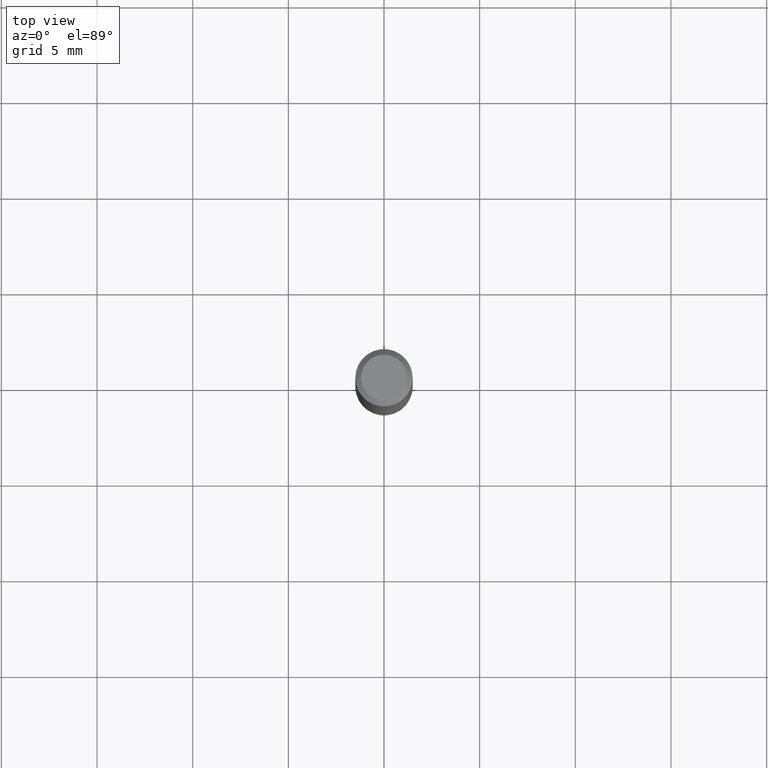
[diagram: clean part render]
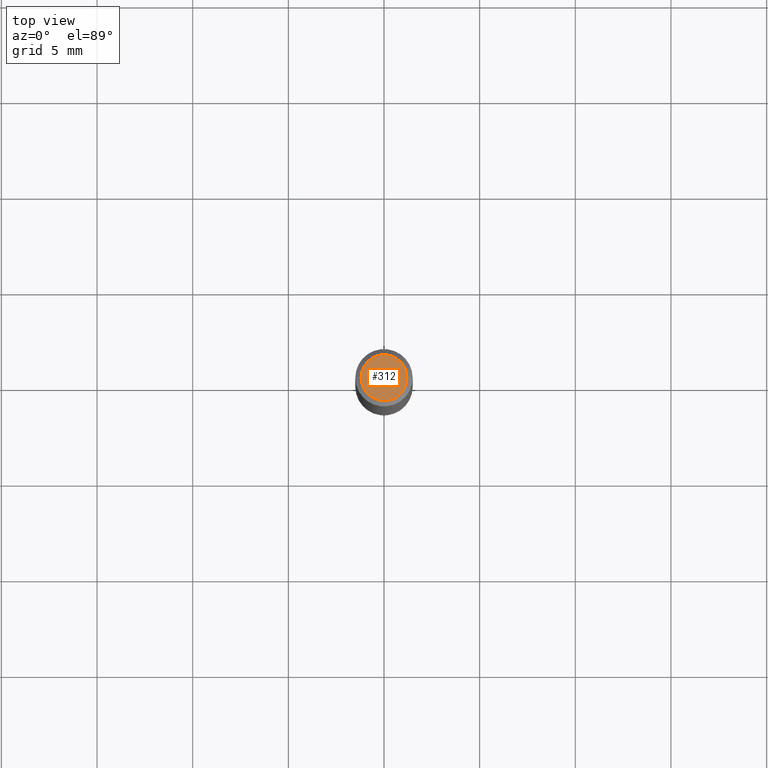
[diagram: same view with one face highlighted and labeled with its STEP entity id]
A machine part, top view. The second image highlights one B-rep face of the part: STEP entity #312.
In plain terms, the highlighted planar face has unit normal (0, -0, -1).
Its self-contained STEP definition (entity closure, byte-faithful):
#4 = CARTESIAN_POINT ( 'NONE',  ( -0.04724000000000000421, 3.504923541997677355E-16, -3.380025165670481712E-19 ) ) ;
#8 = FACE_OUTER_BOUND ( 'NONE', #127, .T. ) ;
#59 = CARTESIAN_POINT ( 'NONE',  ( 4.132873053354867254E-48, -5.900647395337818946E-34, -1.690012582823346072E-19 ) ) ;
#109 = DIRECTION ( 'NONE',  ( -2.445468806185136597E-29, 3.491481338843145583E-15, 1.000000000000000000 ) ) ;
#127 = EDGE_LOOP ( 'NONE', ( #269, #336 ) ) ;
#150 = DIRECTION ( 'NONE',  ( -2.445468806185136597E-29, 3.491481338843145583E-15, 1.000000000000000000 ) ) ;
#181 = EDGE_CURVE ( 'NONE', #231, #461, #267, .T. ) ;
#214 = AXIS2_PLACEMENT_3D ( 'NONE', #59, #273, #340 ) ;
#223 = EDGE_CURVE ( 'NONE', #461, #231, #456, .T. ) ;
#231 = VERTEX_POINT ( 'NONE', #460 ) ;
#233 = AXIS2_PLACEMENT_3D ( 'NONE', #442, #109, #244 ) ;
#244 = DIRECTION ( 'NONE',  ( 1.000000000000000000, -6.982962677686266711E-15, 4.876185090822587894E-29 ) ) ;
#267 = CIRCLE ( 'NONE', #306, 0.04724000000000000421 ) ;
#269 = ORIENTED_EDGE ( 'NONE', *, *, #223, .T. ) ;
#273 = DIRECTION ( 'NONE',  ( 2.438088387897960049E-29, -3.491481338843145188E-15, -1.000000000000000000 ) ) ;
#290 = DIRECTION ( 'NONE',  ( 1.000000000000000000, -6.982962677686266711E-15, 4.876185090822587894E-29 ) ) ;
#306 = AXIS2_PLACEMENT_3D ( 'NONE', #326, #150, #290 ) ;
#312 = ADVANCED_FACE ( 'NONE', ( #8 ), #455, .F. ) ;
#326 = CARTESIAN_POINT ( 'NONE',  ( 8.265746106709734507E-48, -1.180129479067563789E-33, -3.380025165646692144E-19 ) ) ;
#336 = ORIENTED_EDGE ( 'NONE', *, *, #181, .T. ) ;
#340 = DIRECTION ( 'NONE',  ( -1.000000000000000000, 6.982962677686265922E-15, -4.876176775795935793E-29 ) ) ;
#442 = CARTESIAN_POINT ( 'NONE',  ( 8.265746106709734507E-48, -1.180129479067563789E-33, -3.380025165646692144E-19 ) ) ;
#455 = PLANE ( 'NONE',  #214 ) ;
#456 = CIRCLE ( 'NONE', #233, 0.04724000000000000421 ) ;
#460 = CARTESIAN_POINT ( 'NONE',  ( 0.04724000000000000421, -3.852183633974369345E-16, -3.380025165621689721E-19 ) ) ;
#461 = VERTEX_POINT ( 'NONE', #4 ) ;